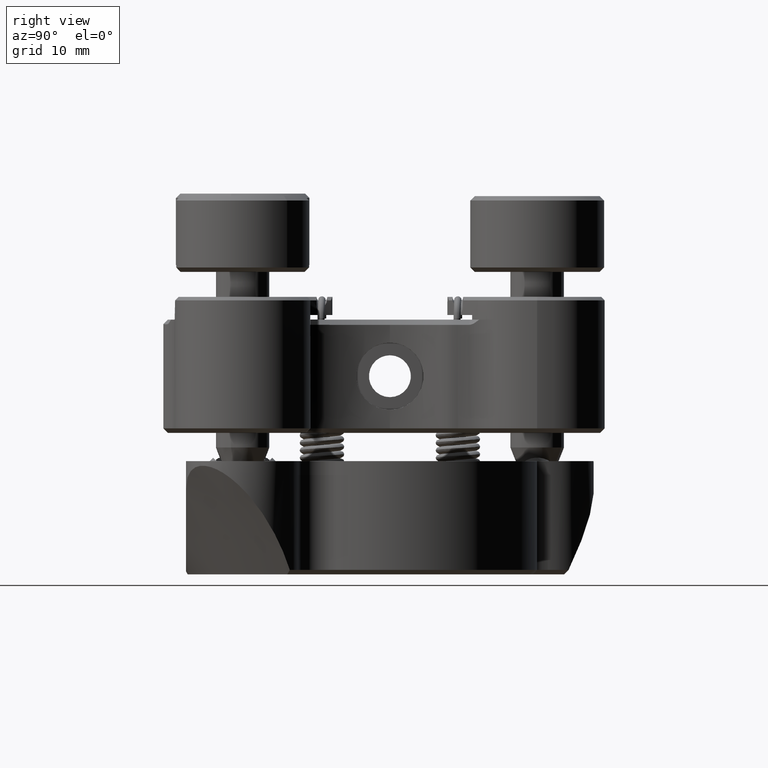
[diagram: clean part render]
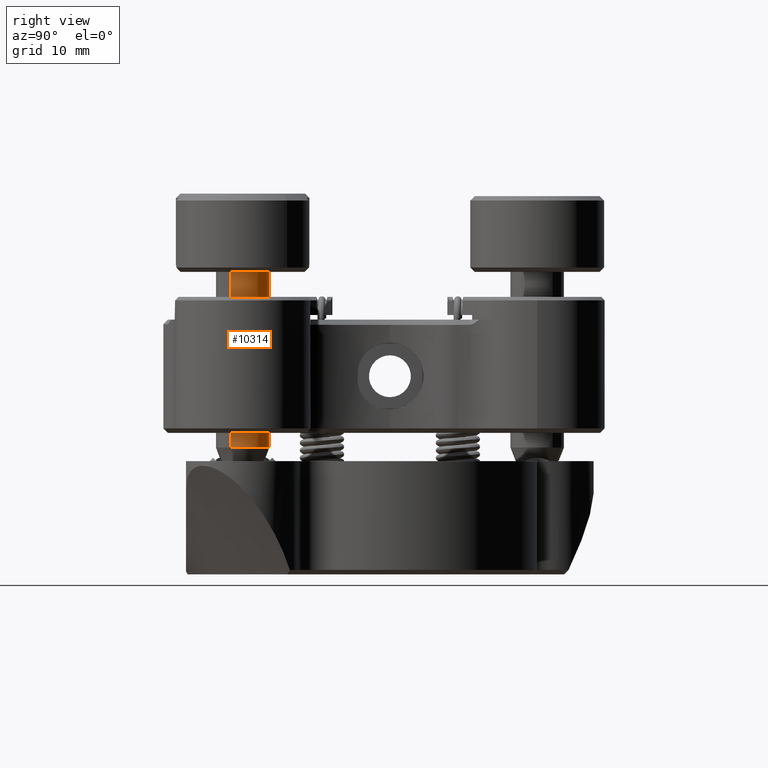
[diagram: same view with one face highlighted and labeled with its STEP entity id]
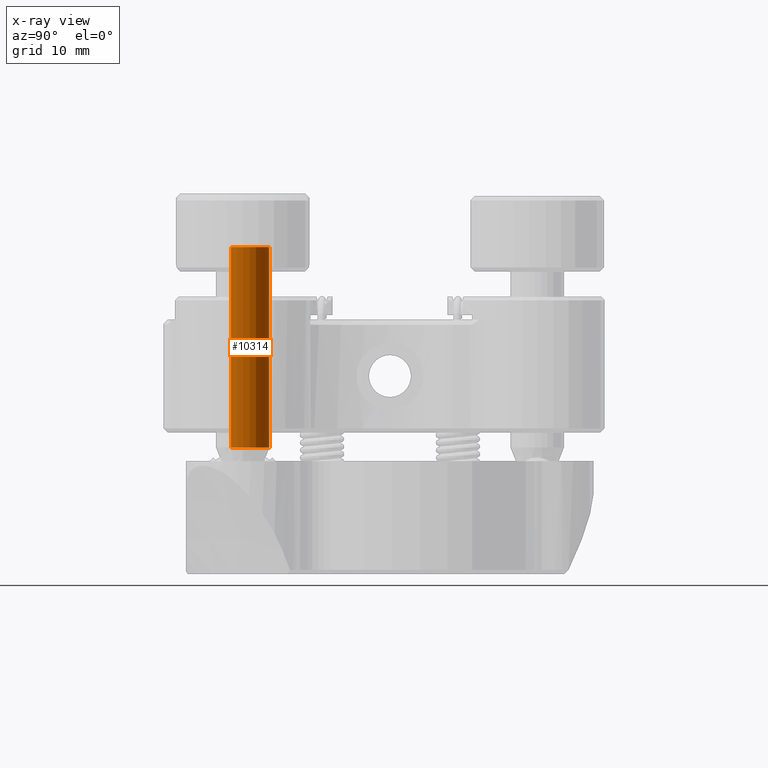
[diagram: x-ray of the same camera — body ghosted, the highlighted face saturated]
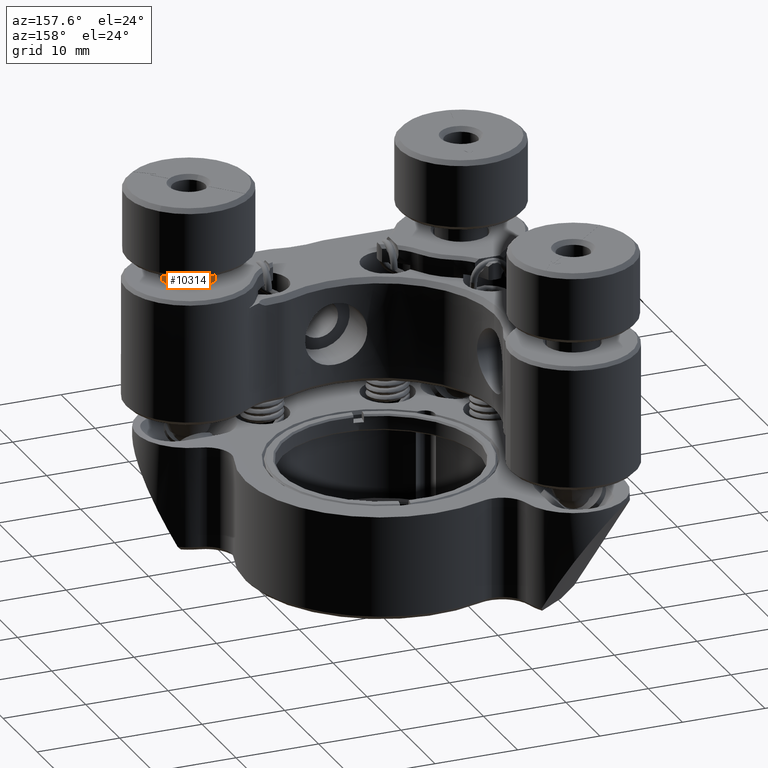
[diagram: same view with one face highlighted and labeled with its STEP entity id]
A machine part, right view. The second image highlights one B-rep face of the part: STEP entity #10314.
The next image is the same camera in x-ray: the body ghosted, the highlighted face saturated — about 0% of this face is hidden behind the body in this view.
A second angle (auxiliary view) of the same face is appended — the face is thin or edge-on in the first view.
In plain terms, the highlighted cylindrical surface (edge-blend (fillet) strip) has radius 3 mm, axis along (-0, 0, -1).
Its self-contained STEP definition (entity closure, byte-faithful):
#282 = VECTOR ( 'NONE', #9693, 1000.000000000000000 ) ;
#1139 = CARTESIAN_POINT ( 'NONE',  ( 24.87000000000000099, 0.000000000000000000, 0.000000000000000000 ) ) ;
#1528 = VERTEX_POINT ( 'NONE', #17288 ) ;
#1619 = ORIENTED_EDGE ( 'NONE', *, *, #9525, .T. ) ;
#2610 = ORIENTED_EDGE ( 'NONE', *, *, #15890, .T. ) ;
#3402 = ORIENTED_EDGE ( 'NONE', *, *, #17687, .F. ) ;
#3499 = DIRECTION ( 'NONE',  ( -1.000000000000000000, 0.000000000000000000, 0.000000000000000000 ) ) ;
#3518 = CARTESIAN_POINT ( 'NONE',  ( 1.900000000000016342, 0.000000000000000000, 3.000000000000000444 ) ) ;
#4116 = VERTEX_POINT ( 'NONE', #3518 ) ;
#4217 = CARTESIAN_POINT ( 'NONE',  ( 1.900000000000016342, 0.000000000000000000, 0.000000000000000000 ) ) ;
#4587 = DIRECTION ( 'NONE',  ( 0.000000000000000000, 0.000000000000000000, 1.000000000000000000 ) ) ;
#4698 = ORIENTED_EDGE ( 'NONE', *, *, #8298, .T. ) ;
#5123 = CIRCLE ( 'NONE', #14049, 3.000000000000000444 ) ;
#5877 = AXIS2_PLACEMENT_3D ( 'NONE', #4217, #19129, #19233 ) ;
#6182 = CYLINDRICAL_SURFACE ( 'NONE', #20249, 3.000000000000000444 ) ;
#6346 = LINE ( 'NONE', #12899, #282 ) ;
#6486 = VERTEX_POINT ( 'NONE', #20128 ) ;
#8298 = EDGE_CURVE ( 'NONE', #1528, #6486, #6346, .T. ) ;
#9324 = CIRCLE ( 'NONE', #5877, 3.000000000000000444 ) ;
#9525 = EDGE_CURVE ( 'NONE', #20010, #1528, #5123, .T. ) ;
#9693 = DIRECTION ( 'NONE',  ( -1.000000000000000000, -0.000000000000000000, -0.000000000000000000 ) ) ;
#10049 = DIRECTION ( 'NONE',  ( 0.000000000000000000, 0.000000000000000000, -1.000000000000000000 ) ) ;
#10314 = ADVANCED_FACE ( 'NONE', ( #10907 ), #6182, .T. ) ;
#10907 = FACE_OUTER_BOUND ( 'NONE', #11647, .T. ) ;
#11392 = VECTOR ( 'NONE', #18161, 1000.000000000000000 ) ;
#11647 = EDGE_LOOP ( 'NONE', ( #1619, #4698, #2610, #3402 ) ) ;
#12731 = DIRECTION ( 'NONE',  ( -1.000000000000000000, -0.000000000000000000, -0.000000000000000000 ) ) ;
#12899 = CARTESIAN_POINT ( 'NONE',  ( 24.87000000000000099, 3.673940397442060361E-16, -3.000000000000000444 ) ) ;
#14049 = AXIS2_PLACEMENT_3D ( 'NONE', #18216, #3499, #10049 ) ;
#14920 = LINE ( 'NONE', #18368, #11392 ) ;
#15890 = EDGE_CURVE ( 'NONE', #6486, #4116, #9324, .T. ) ;
#17288 = CARTESIAN_POINT ( 'NONE',  ( 24.37000000000000455, 3.673940397442060361E-16, -3.000000000000000444 ) ) ;
#17687 = EDGE_CURVE ( 'NONE', #20010, #4116, #14920, .T. ) ;
#18161 = DIRECTION ( 'NONE',  ( -1.000000000000000000, -0.000000000000000000, -0.000000000000000000 ) ) ;
#18216 = CARTESIAN_POINT ( 'NONE',  ( 24.37000000000000455, 0.000000000000000000, 0.000000000000000000 ) ) ;
#18368 = CARTESIAN_POINT ( 'NONE',  ( 24.87000000000000099, 0.000000000000000000, 3.000000000000000444 ) ) ;
#19044 = CARTESIAN_POINT ( 'NONE',  ( 24.37000000000000455, 0.000000000000000000, 3.000000000000000444 ) ) ;
#19129 = DIRECTION ( 'NONE',  ( 1.000000000000000000, -0.000000000000000000, -0.000000000000000000 ) ) ;
#19233 = DIRECTION ( 'NONE',  ( 0.000000000000000000, 0.000000000000000000, -1.000000000000000000 ) ) ;
#20010 = VERTEX_POINT ( 'NONE', #19044 ) ;
#20128 = CARTESIAN_POINT ( 'NONE',  ( 1.900000000000016342, 3.673940397442060361E-16, -3.000000000000000444 ) ) ;
#20249 = AXIS2_PLACEMENT_3D ( 'NONE', #1139, #12731, #4587 ) ;